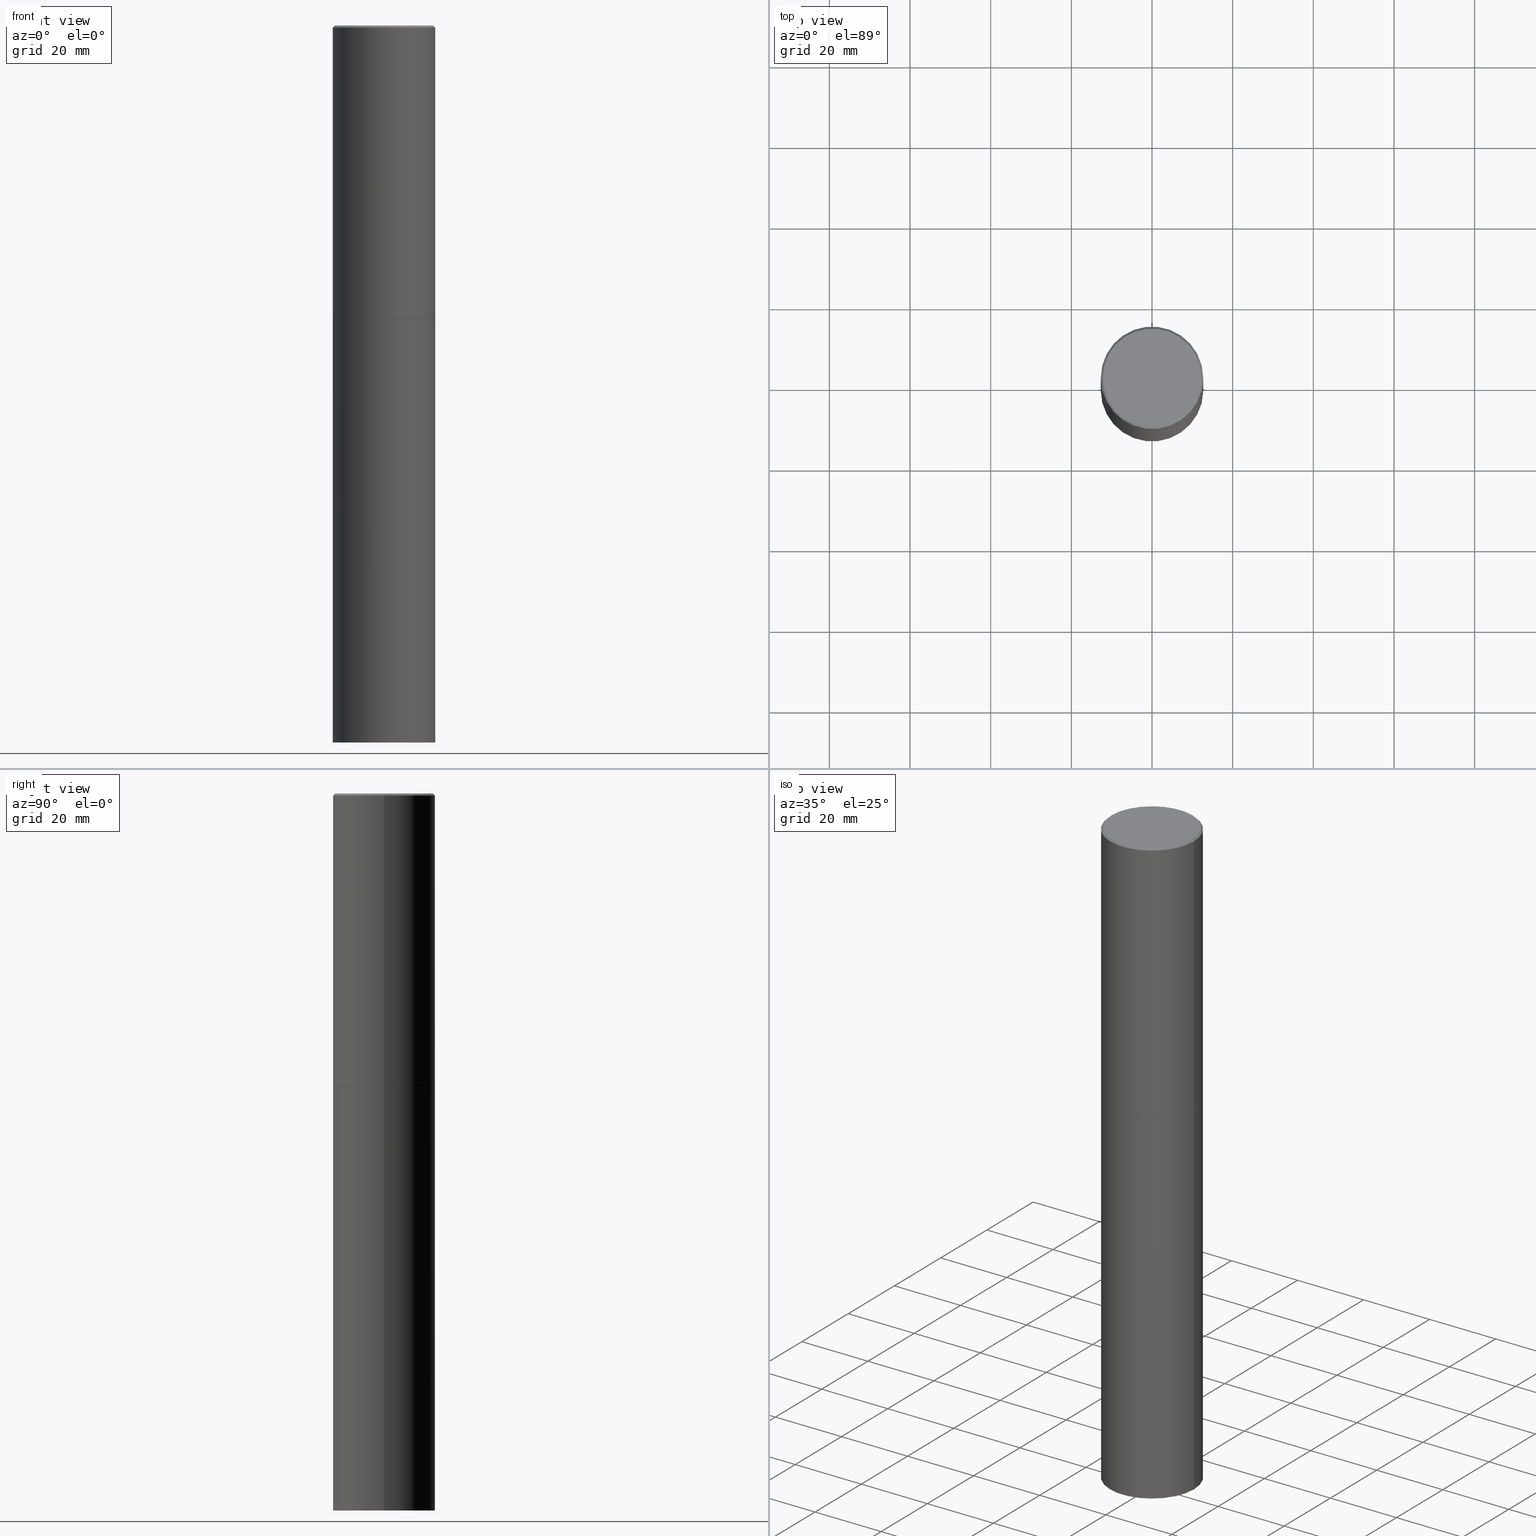
[diagram: canonical four-view strip — front | top / right | iso, engineering-drawing reading convention]
A machine part, canonical four-view strip (front | top / right | iso — engineering-drawing reading convention). The complete STEP part file that produces these views, byte-faithful:
ISO-10303-21;
HEADER;
FILE_DESCRIPTION (( 'STEP AP203' ),
    '1' );
FILE_NAME ('34835.STEP',
    '2024-02-27T17:54:03',
    ( '' ),
    ( '' ),
    'SwSTEP 2.0',
    'SolidWorks 2023',
    '' );
FILE_SCHEMA (( 'CONFIG_CONTROL_DESIGN' ));
ENDSEC;

DATA;
#1 = DATE_AND_TIME ( #231, #209 ) ;
#2 = CARTESIAN_POINT ( 'NONE',  ( -5.219257071676098903E-46, 7.451715851902235727E-32, 2.134256245050205639E-17 ) ) ;
#3 = PERSON_AND_ORGANIZATION_ROLE ( 'design_supplier' ) ;
#4 = ORIENTED_EDGE ( 'NONE', *, *, #196, .T. ) ;
#5 = FACE_OUTER_BOUND ( 'NONE', #96, .T. ) ;
#6 = DIRECTION ( 'NONE',  ( 1.000000000000000000, -6.982962677686266711E-15, 4.876176775795935793E-29 ) ) ;
#7 = CIRCLE ( 'NONE', #82, 0.4799999999999996492 ) ;
#8 = APPROVAL_PERSON_ORGANIZATION ( #114, #47, #253 ) ;
#9 = CARTESIAN_POINT ( 'NONE',  ( 0.5000000000000000000, -2.793185071074515204E-14, -7.000000000000000000 ) ) ;
#10 = ADVANCED_FACE ( 'NONE', ( #21 ), #170, .T. ) ;
#11 = CARTESIAN_POINT ( 'NONE',  ( 0.4999999999999997224, -3.500078625662627502E-15, -0.02000000000000009756 ) ) ;
#12 = CC_DESIGN_DATE_AND_TIME_ASSIGNMENT ( #89, #339, ( #365 ) ) ;
#13 = CARTESIAN_POINT ( 'NONE',  ( 3.491481338843304144E-15, 0.4999999999999755196, -7.000000000000001776 ) ) ;
#14 = PRODUCT_RELATED_PRODUCT_CATEGORY ( 'detail', '', ( #287 ) ) ;
#15 = ORIENTED_EDGE ( 'NONE', *, *, #156, .T. ) ;
#16 =( CONVERSION_BASED_UNIT ( 'INCH', #135 ) LENGTH_UNIT ( ) NAMED_UNIT ( #49 ) );
#17 = ORIENTED_EDGE ( 'NONE', *, *, #203, .F. ) ;
#18 = APPROVAL_PERSON_ORGANIZATION ( #176, #124, #199 ) ;
#19 = DIRECTION ( 'NONE',  ( -2.445468806185136597E-29, 3.491481338843145583E-15, 1.000000000000000000 ) ) ;
#20 = CONICAL_SURFACE ( 'NONE', #290, 0.4999999999999997224, 0.7853981633974468357 ) ;
#21 = FACE_OUTER_BOUND ( 'NONE', #300, .T. ) ;
#22 = CARTESIAN_POINT ( 'NONE',  ( 7.030722817782267716E-29, -1.003800884917404311E-14, -2.875000000000000000 ) ) ;
#23 = CARTESIAN_POINT ( 'NONE',  ( 0.000000000000000000, 0.000000000000000000, 0.000000000000000000 ) ) ;
#24 = ADVANCED_FACE ( 'NONE', ( #103 ), #154, .T. ) ;
#25 = CLOSED_SHELL ( 'NONE', ( #24, #34, #10, #128, #323, #348, #75, #181 ) ) ;
#26 = MANIFOLD_SOLID_BREP ( 'Body-Move/Copy2[2]', #25 ) ;
#27 = PERSON_AND_ORGANIZATION_ROLE ( 'classification_officer' ) ;
#28 = CARTESIAN_POINT ( 'NONE',  ( 7.030722817782267716E-29, -1.003800884917404311E-14, -2.875000000000000000 ) ) ;
#29 = PERSON_AND_ORGANIZATION_ROLE ( 'creator' ) ;
#30 = CIRCLE ( 'NONE', #236, 0.4989999999999999991 ) ;
#31 = ORIENTED_EDGE ( 'NONE', *, *, #42, .T. ) ;
#32 = CARTESIAN_POINT ( 'NONE',  ( 4.890937612370297681E-31, -6.982962677686324889E-17, -0.02000000000000009756 ) ) ;
#33 = CARTESIAN_POINT ( 'NONE',  ( -0.4799999999999996492, 3.386736898677836830E-15, 2.134256245047849534E-17 ) ) ;
#34 = ADVANCED_FACE ( 'NONE', ( #334 ), #53, .T. ) ;
#35 = DIRECTION ( 'NONE',  ( 1.000000000000000000, -6.982962677686266711E-15, 0.000000000000000000 ) ) ;
#36 = PRODUCT_DEFINITION_SHAPE ( 'NONE', 'NONE',  #296 ) ;
#37 = EDGE_LOOP ( 'NONE', ( #341, #159 ) ) ;
#38 = CARTESIAN_POINT ( 'NONE',  ( 0.4989999999999999991, -1.352250722533949203E-14, -2.875000000000000000 ) ) ;
#39 = CC_DESIGN_APPROVAL ( #47, ( #365 ) ) ;
#40 = CYLINDRICAL_SURFACE ( 'NONE', #211, 0.4999999999999998335 ) ;
#41 = EDGE_CURVE ( 'NONE', #271, #249, #336, .T. ) ;
#42 = EDGE_CURVE ( 'NONE', #249, #271, #148, .T. ) ;
#43 = EDGE_LOOP ( 'NONE', ( #185, #163, #284, #69 ) ) ;
#44 = LOCAL_TIME ( 12, 54, 3.000000000000000000, #104 ) ;
#45 = CARTESIAN_POINT ( 'NONE',  ( 0.000000000000000000, 0.000000000000000000, 0.000000000000000000 ) ) ;
#46 = AXIS2_PLACEMENT_3D ( 'NONE', #278, #111, #59 ) ;
#47 = APPROVAL ( #226, 'UNSPECIFIED' ) ;
#48 = DIRECTION ( 'NONE',  ( -2.445468806185136597E-29, 3.491481338843145583E-15, 1.000000000000000000 ) ) ;
#49 = DIMENSIONAL_EXPONENTS ( 1.000000000000000000, 0.000000000000000000, 0.000000000000000000, 0.000000000000000000, 0.000000000000000000, 0.000000000000000000, 0.000000000000000000 ) ;
#50 = CARTESIAN_POINT ( 'NONE',  ( -5.219257071676098903E-46, 7.451715851902235727E-32, 2.134256245050205639E-17 ) ) ;
#51 = AXIS2_PLACEMENT_3D ( 'NONE', #45, #169, #76 ) ;
#52 = DATE_TIME_ROLE ( 'creation_date' ) ;
#53 = CYLINDRICAL_SURFACE ( 'NONE', #314, 0.4999999999999998335 ) ;
#54 = EDGE_CURVE ( 'NONE', #92, #127, #245, .T. ) ;
#55 = VERTEX_POINT ( 'NONE', #147 ) ;
#56 = APPROVAL_PERSON_ORGANIZATION ( #331, #79, #194 ) ;
#57 = CARTESIAN_POINT ( 'NONE',  ( 0.5000000000000000000, -1.352949018801717646E-14, -2.875000000000000000 ) ) ;
#58 = CIRCLE ( 'NONE', #297, 0.4799999999999996492 ) ;
#59 = DIRECTION ( 'NONE',  ( 1.000000000000000000, -6.982962677686266711E-15, 0.000000000000000000 ) ) ;
#60 = EDGE_CURVE ( 'NONE', #288, #293, #30, .T. ) ;
#61 = DIRECTION ( 'NONE',  ( -2.445468806185136597E-29, 3.491481338843145583E-15, 1.000000000000000000 ) ) ;
#62 = ORIENTED_EDGE ( 'NONE', *, *, #359, .T. ) ;
#63 = CARTESIAN_POINT ( 'NONE',  ( 7.030722817782267716E-29, -1.003800884917404311E-14, -2.875000000000000000 ) ) ;
#64 = VECTOR ( 'NONE', #239, 39.37007874015748143 ) ;
#65 = CYLINDRICAL_SURFACE ( 'NONE', #206, 0.5000000000000000000 ) ;
#66 = ORIENTED_EDGE ( 'NONE', *, *, #237, .F. ) ;
#67 = LINE ( 'NONE', #157, #333 ) ;
#68 = EDGE_CURVE ( 'NONE', #174, #74, #58, .T. ) ;
#69 = ORIENTED_EDGE ( 'NONE', *, *, #133, .F. ) ;
#70 = AXIS2_PLACEMENT_3D ( 'NONE', #22, #19, #275 ) ;
#71 = DIRECTION ( 'NONE',  ( 1.000000000000000000, -6.982962677686269077E-15, 0.000000000000000000 ) ) ;
#72 = CIRCLE ( 'NONE', #228, 0.4999999999999997224 ) ;
#73 = PERSON_AND_ORGANIZATION_ROLE ( 'design_owner' ) ;
#74 = VERTEX_POINT ( 'NONE', #361 ) ;
#75 = ADVANCED_FACE ( 'NONE', ( #285 ), #80, .F. ) ;
#76 = DIRECTION ( 'NONE',  ( 1.000000000000000000, 0.000000000000000000, 0.000000000000000000 ) ) ;
#77 = ORIENTED_EDGE ( 'NONE', *, *, #344, .F. ) ;
#78 = FACE_OUTER_BOUND ( 'NONE', #178, .T. ) ;
#79 = APPROVAL ( #81, 'UNSPECIFIED' ) ;
#80 = PLANE ( 'NONE',  #123 ) ;
#81 = APPROVAL_STATUS ( 'not_yet_approved' ) ;
#82 = AXIS2_PLACEMENT_3D ( 'NONE', #50, #48, #200 ) ;
#83 = CARTESIAN_POINT ( 'NONE',  ( 1.711828164329595394E-28, -2.444036937190201868E-14, -7.000000000000000000 ) ) ;
#84 =( NAMED_UNIT ( * ) SI_UNIT ( $, .STERADIAN. ) SOLID_ANGLE_UNIT ( ) );
#85 = PRODUCT_DEFINITION_FORMATION_WITH_SPECIFIED_SOURCE ( 'ANY', '', #287, .NOT_KNOWN. ) ;
#86 = COORDINATED_UNIVERSAL_TIME_OFFSET ( 5, 0, .BEHIND. ) ;
#87 = VECTOR ( 'NONE', #167, 39.37007874015748143 ) ;
#88 = ADVANCED_FACE ( 'NONE', ( #5 ), #90, .T. ) ;
#89 = DATE_AND_TIME ( #233, #143 ) ;
#90 = CYLINDRICAL_SURFACE ( 'NONE', #276, 0.5000000000000000000 ) ;
#91 = PERSON_AND_ORGANIZATION ( #248, #165 ) ;
#92 = VERTEX_POINT ( 'NONE', #315 ) ;
#93 = DIRECTION ( 'NONE',  ( -2.445468806185136597E-29, 3.491481338843145583E-15, 1.000000000000000000 ) ) ;
#94 = DIRECTION ( 'NONE',  ( -2.445468806185136597E-29, 3.491481338843145583E-15, 1.000000000000000000 ) ) ;
#95 = AXIS2_PLACEMENT_3D ( 'NONE', #250, #234, #205 ) ;
#96 = EDGE_LOOP ( 'NONE', ( #17, #31, #105, #246 ) ) ;
#97 = LINE ( 'NONE', #11, #64 ) ;
#98 = CC_DESIGN_DATE_AND_TIME_ASSIGNMENT ( #260, #52, ( #296 ) ) ;
#99 = DIRECTION ( 'NONE',  ( -1.000000000000000000, 6.982962677686265922E-15, -4.876176775795935793E-29 ) ) ;
#100 = VECTOR ( 'NONE', #272, 39.37007874015748143 ) ;
#101 = DIRECTION ( 'NONE',  ( -0.7071067811865464625, 2.468850131082245622E-15, -0.7071067811865485719 ) ) ;
#102 = ORIENTED_EDGE ( 'NONE', *, *, #142, .F. ) ;
#103 = FACE_OUTER_BOUND ( 'NONE', #269, .T. ) ;
#104 = COORDINATED_UNIVERSAL_TIME_OFFSET ( 5, 0, .BEHIND. ) ;
#105 = ORIENTED_EDGE ( 'NONE', *, *, #344, .T. ) ;
#106 = EDGE_CURVE ( 'NONE', #293, #356, #261, .T. ) ;
#107 = LINE ( 'NONE', #324, #366 ) ;
#108 = FACE_OUTER_BOUND ( 'NONE', #43, .T. ) ;
#109 = DIRECTION ( 'NONE',  ( -1.000000000000000000, 6.982962677686266711E-15, 0.000000000000000000 ) ) ;
#110 = DIRECTION ( 'NONE',  ( -1.000000000000000000, 6.982962677686265922E-15, -4.876176775795935793E-29 ) ) ;
#111 = DIRECTION ( 'NONE',  ( -2.445468806185136597E-29, 3.491481338843145583E-15, 1.000000000000000000 ) ) ;
#112 =( NAMED_UNIT ( * ) PLANE_ANGLE_UNIT ( ) SI_UNIT ( $, .RADIAN. ) );
#113 = AXIS2_PLACEMENT_3D ( 'NONE', #13, #291, #155 ) ;
#114 = PERSON_AND_ORGANIZATION ( #248, #165 ) ;
#115 = EDGE_CURVE ( 'NONE', #74, #174, #7, .T. ) ;
#116 = PERSON_AND_ORGANIZATION ( #248, #165 ) ;
#117 = DIRECTION ( 'NONE',  ( -2.445468806185136597E-29, 3.491481338843145583E-15, 1.000000000000000000 ) ) ;
#118 = PERSON_AND_ORGANIZATION ( #248, #165 ) ;
#119 = DIRECTION ( 'NONE',  ( -2.445468806185136597E-29, 3.491481338843145583E-15, 1.000000000000000000 ) ) ;
#120 = FACE_OUTER_BOUND ( 'NONE', #204, .T. ) ;
#121 = ORIENTED_EDGE ( 'NONE', *, *, #54, .T. ) ;
#122 = DIRECTION ( 'NONE',  ( -2.445468806185136597E-29, 3.491481338843145583E-15, 1.000000000000000000 ) ) ;
#123 = AXIS2_PLACEMENT_3D ( 'NONE', #28, #340, #262 ) ;
#124 = APPROVAL ( #258, 'UNSPECIFIED' ) ;
#125 = AXIS2_PLACEMENT_3D ( 'NONE', #353, #140, #109 ) ;
#126 = CARTESIAN_POINT ( 'NONE',  ( -0.4989999999999999991, -6.487102143382921572E-15, -2.875000000000000000 ) ) ;
#127 = VERTEX_POINT ( 'NONE', #57 ) ;
#128 = ADVANCED_FACE ( 'NONE', ( #120 ), #20, .T. ) ;
#129 = ORIENTED_EDGE ( 'NONE', *, *, #263, .T. ) ;
#130 = CIRCLE ( 'NONE', #257, 0.5000000000000000000 ) ;
#131 = ORIENTED_EDGE ( 'NONE', *, *, #68, .T. ) ;
#132 = DATE_AND_TIME ( #304, #44 ) ;
#133 = EDGE_CURVE ( 'NONE', #55, #356, #193, .T. ) ;
#134 = ORIENTED_EDGE ( 'NONE', *, *, #133, .T. ) ;
#135 = LENGTH_MEASURE_WITH_UNIT ( LENGTH_MEASURE( 0.02539999999999999897 ), #218 );
#136 = ORIENTED_EDGE ( 'NONE', *, *, #41, .F. ) ;
#137 = AXIS2_PLACEMENT_3D ( 'NONE', #303, #117, #177 ) ;
#138 = DIRECTION ( 'NONE',  ( -2.445468806185136877E-29, 3.491481338843145188E-15, 1.000000000000000000 ) ) ;
#139 = MANIFOLD_SOLID_BREP ( 'Body-Move/Copy2[1]', #264 ) ;
#140 = DIRECTION ( 'NONE',  ( 2.445468806185136597E-29, -3.491481338843145583E-15, -1.000000000000000000 ) ) ;
#141 = CARTESIAN_POINT ( 'NONE',  ( -0.4999999999999998335, 3.552713678800499746E-15, -2.459467545127452330E-29 ) ) ;
#142 = EDGE_CURVE ( 'NONE', #160, #316, #241, .T. ) ;
#143 = LOCAL_TIME ( 12, 54, 3.000000000000000000, #224 ) ;
#144 = VECTOR ( 'NONE', #138, 39.37007874015748143 ) ;
#145 = CARTESIAN_POINT ( 'NONE',  ( 0.4989999999999999991, -1.352250722533949203E-14, -2.875000000000000000 ) ) ;
#146 = CC_DESIGN_PERSON_AND_ORGANIZATION_ASSIGNMENT ( #171, #3, ( #85 ) ) ;
#147 = CARTESIAN_POINT ( 'NONE',  ( -0.5000000000000000000, -1.499459818505530375E-15, -2.874000000000000110 ) ) ;
#148 = CIRCLE ( 'NONE', #182, 0.5000000000000000000 ) ;
#149 = CALENDAR_DATE ( 2024, 27, 2 ) ;
#150 = ORIENTED_EDGE ( 'NONE', *, *, #347, .F. ) ;
#151 = DIRECTION ( 'NONE',  ( 2.445468806185136597E-29, -3.491481338843145583E-15, -1.000000000000000000 ) ) ;
#152 = ORIENTED_EDGE ( 'NONE', *, *, #279, .T. ) ;
#153 = DIRECTION ( 'NONE',  ( 1.000000000000000000, -6.982962677686270655E-15, 0.000000000000000000 ) ) ;
#154 = CONICAL_SURFACE ( 'NONE', #197, 0.4989999999999999991, 0.7853981633975507526 ) ;
#155 = DIRECTION ( 'NONE',  ( -1.000000000000000000, 6.982962677686265922E-15, -4.876176775795935793E-29 ) ) ;
#156 = EDGE_CURVE ( 'NONE', #293, #288, #307, .T. ) ;
#157 = CARTESIAN_POINT ( 'NONE',  ( -0.4999999999999997224, 3.421651712066268085E-15, -0.02000000000000009756 ) ) ;
#158 = FACE_OUTER_BOUND ( 'NONE', #212, .T. ) ;
#159 = ORIENTED_EDGE ( 'NONE', *, *, #60, .F. ) ;
#160 = VERTEX_POINT ( 'NONE', #221 ) ;
#161 = DIRECTION ( 'NONE',  ( 1.000000000000000000, -6.982962677686266711E-15, 0.000000000000000000 ) ) ;
#162 = CC_DESIGN_PERSON_AND_ORGANIZATION_ASSIGNMENT ( #118, #27, ( #365 ) ) ;
#163 = ORIENTED_EDGE ( 'NONE', *, *, #60, .T. ) ;
#164 = PERSON_AND_ORGANIZATION ( #248, #165 ) ;
#165 = ORGANIZATION ( 'UNSPECIFIED', 'UNSPECIFIED', '' ) ;
#166 = EDGE_LOOP ( 'NONE', ( #326, #121 ) ) ;
#167 = DIRECTION ( 'NONE',  ( 0.7071067811866199593, -2.468850131083015945E-15, 0.7071067811864750752 ) ) ;
#168 = PLANE ( 'NONE',  #227 ) ;
#169 = DIRECTION ( 'NONE',  ( 0.000000000000000000, 0.000000000000000000, 1.000000000000000000 ) ) ;
#170 = CONICAL_SURFACE ( 'NONE', #125, 0.4999999999999997224, 0.7853981633974468357 ) ;
#171 = PERSON_AND_ORGANIZATION ( #248, #165 ) ;
#172 = COORDINATED_UNIVERSAL_TIME_OFFSET ( 5, 0, .BEHIND. ) ;
#173 = DIRECTION ( 'NONE',  ( -2.445468806185136597E-29, 3.491481338843145583E-15, 1.000000000000000000 ) ) ;
#174 = VERTEX_POINT ( 'NONE', #33 ) ;
#175 = CARTESIAN_POINT ( 'NONE',  ( 7.030722817782267716E-29, -1.003800884917404311E-14, -2.875000000000000000 ) ) ;
#176 = PERSON_AND_ORGANIZATION ( #248, #165 ) ;
#177 = DIRECTION ( 'NONE',  ( 1.000000000000000000, -6.982962677686269077E-15, 0.000000000000000000 ) ) ;
#178 = EDGE_LOOP ( 'NONE', ( #327, #134, #274, #318 ) ) ;
#179 = DIRECTION ( 'NONE',  ( 1.000000000000000000, -6.982962677686266711E-15, 4.876176775795935793E-29 ) ) ;
#180 = CC_DESIGN_SECURITY_CLASSIFICATION ( #365, ( #85 ) ) ;
#181 = ADVANCED_FACE ( 'NONE', ( #256 ), #230, .F. ) ;
#182 = AXIS2_PLACEMENT_3D ( 'NONE', #83, #122, #153 ) ;
#183 = CARTESIAN_POINT ( 'NONE',  ( -0.5000000000000000000, -1.368647543173752918E-14, -7.000000000000000000 ) ) ;
#184 = DIRECTION ( 'NONE',  ( -0.7071067811866199593, 7.493145998870616062E-15, 0.7071067811864750752 ) ) ;
#185 = ORIENTED_EDGE ( 'NONE', *, *, #279, .F. ) ;
#186 = LOCAL_TIME ( 12, 54, 3.000000000000000000, #86 ) ;
#187 = ORIENTED_EDGE ( 'NONE', *, *, #68, .F. ) ;
#188 = AXIS2_PLACEMENT_3D ( 'NONE', #281, #173, #195 ) ;
#189 = LINE ( 'NONE', #251, #100 ) ;
#190 = EDGE_LOOP ( 'NONE', ( #308, #244, #66, #77 ) ) ;
#191 = APPLICATION_PROTOCOL_DEFINITION ( 'international standard', 'config_control_design', 1994, #309 ) ;
#192 = DIRECTION ( 'NONE',  ( -1.000000000000000000, 6.982962677686266711E-15, 0.000000000000000000 ) ) ;
#193 = CIRCLE ( 'NONE', #95, 0.5000000000000000000 ) ;
#194 = APPROVAL_ROLE ( '' ) ;
#195 = DIRECTION ( 'NONE',  ( 1.000000000000000000, -6.982962677686270655E-15, 0.000000000000000000 ) ) ;
#196 = EDGE_CURVE ( 'NONE', #316, #160, #72, .T. ) ;
#197 = AXIS2_PLACEMENT_3D ( 'NONE', #213, #322, #71 ) ;
#198 = SHAPE_DEFINITION_REPRESENTATION ( #36, #294 ) ;
#199 = APPROVAL_ROLE ( '' ) ;
#200 = DIRECTION ( 'NONE',  ( 1.000000000000000000, -6.982962677686267499E-15, 4.876431871984417079E-29 ) ) ;
#201 = CALENDAR_DATE ( 2024, 27, 2 ) ;
#202 = DIRECTION ( 'NONE',  ( 1.000000000000000000, -6.982962677686267499E-15, 4.876176775795936353E-29 ) ) ;
#203 = EDGE_CURVE ( 'NONE', #249, #92, #208, .T. ) ;
#204 = EDGE_LOOP ( 'NONE', ( #280, #187, #129, #4 ) ) ;
#205 = DIRECTION ( 'NONE',  ( 1.000000000000000000, -6.982962677686266711E-15, 0.000000000000000000 ) ) ;
#206 = AXIS2_PLACEMENT_3D ( 'NONE', #349, #240, #179 ) ;
#207 = ORIENTED_EDGE ( 'NONE', *, *, #332, .F. ) ;
#208 = LINE ( 'NONE', #235, #325 ) ;
#209 = LOCAL_TIME ( 12, 54, 3.000000000000000000, #277 ) ;
#210 = CARTESIAN_POINT ( 'NONE',  ( -0.4999999999999997224, 3.421651712066268085E-15, -0.02000000000000009756 ) ) ;
#211 = AXIS2_PLACEMENT_3D ( 'NONE', #335, #357, #299 ) ;
#212 = EDGE_LOOP ( 'NONE', ( #136, #215 ) ) ;
#213 = CARTESIAN_POINT ( 'NONE',  ( 7.030722817782267716E-29, -1.003800884917404311E-14, -2.875000000000000000 ) ) ;
#214 = CARTESIAN_POINT ( 'NONE',  ( 7.028277348976082113E-29, -1.003451736783520168E-14, -2.874000000000000110 ) ) ;
#215 = ORIENTED_EDGE ( 'NONE', *, *, #42, .F. ) ;
#216 = ORIENTED_EDGE ( 'NONE', *, *, #347, .T. ) ;
#217 = EDGE_CURVE ( 'NONE', #74, #160, #97, .T. ) ;
#218 =( LENGTH_UNIT ( ) NAMED_UNIT ( * ) SI_UNIT ( $, .METRE. ) );
#219 = ORIENTED_EDGE ( 'NONE', *, *, #263, .F. ) ;
#220 = APPLICATION_PROTOCOL_DEFINITION ( 'international standard', 'config_control_design', 1994, #329 ) ;
#221 = CARTESIAN_POINT ( 'NONE',  ( 0.4999999999999997224, -3.500078625662627502E-15, -0.02000000000000009756 ) ) ;
#222 = AXIS2_PLACEMENT_3D ( 'NONE', #214, #223, #161 ) ;
#223 = DIRECTION ( 'NONE',  ( -2.445468806185136597E-29, 3.491481338843145583E-15, 1.000000000000000000 ) ) ;
#224 = COORDINATED_UNIVERSAL_TIME_OFFSET ( 5, 0, .BEHIND. ) ;
#225 = CC_DESIGN_PERSON_AND_ORGANIZATION_ASSIGNMENT ( #164, #73, ( #287 ) ) ;
#226 = APPROVAL_STATUS ( 'not_yet_approved' ) ;
#227 = AXIS2_PLACEMENT_3D ( 'NONE', #270, #301, #110 ) ;
#228 = AXIS2_PLACEMENT_3D ( 'NONE', #317, #265, #35 ) ;
#229 = APPROVAL_DATE_TIME ( #132, #79 ) ;
#230 = PLANE ( 'NONE',  #282 ) ;
#231 = CALENDAR_DATE ( 2024, 27, 2 ) ;
#232 = DIRECTION ( 'NONE',  ( 1.000000000000000000, -6.982962677686267499E-15, 4.876431871984417079E-29 ) ) ;
#233 = CALENDAR_DATE ( 2024, 27, 2 ) ;
#234 = DIRECTION ( 'NONE',  ( -2.445468806185136597E-29, 3.491481338843145583E-15, 1.000000000000000000 ) ) ;
#235 = CARTESIAN_POINT ( 'NONE',  ( -0.5000000000000000000, 3.552713678800500929E-15, -2.459467545127452891E-29 ) ) ;
#236 = AXIS2_PLACEMENT_3D ( 'NONE', #259, #305, #330 ) ;
#237 = EDGE_CURVE ( 'NONE', #127, #92, #130, .T. ) ;
#238 = PLANE ( 'NONE',  #113 ) ;
#239 = DIRECTION ( 'NONE',  ( 0.7071067811865464625, -7.319954787623252890E-15, -0.7071067811865485719 ) ) ;
#240 = DIRECTION ( 'NONE',  ( -2.445468806185136597E-29, 3.491481338843145583E-15, 1.000000000000000000 ) ) ;
#241 = CIRCLE ( 'NONE', #46, 0.4999999999999997224 ) ;
#242 = EDGE_LOOP ( 'NONE', ( #131, #295 ) ) ;
#243 = ORIENTED_EDGE ( 'NONE', *, *, #217, .T. ) ;
#244 = ORIENTED_EDGE ( 'NONE', *, *, #203, .T. ) ;
#245 = CIRCLE ( 'NONE', #319, 0.5000000000000000000 ) ;
#246 = ORIENTED_EDGE ( 'NONE', *, *, #54, .F. ) ;
#247 = DIRECTION ( 'NONE',  ( -2.445468806185136877E-29, 3.491481338843145188E-15, 1.000000000000000000 ) ) ;
#248 = PERSON ( 'UNSPECIFIED', 'UNSPECIFIED', 'UNSPECIFIED', ('UNSPECIFIED'), ('UNSPECIFIED'), ('UNSPECIFIED') ) ;
#249 = VERTEX_POINT ( 'NONE', #183 ) ;
#250 = CARTESIAN_POINT ( 'NONE',  ( 7.028277348976082113E-29, -1.003451736783520168E-14, -2.874000000000000110 ) ) ;
#251 = CARTESIAN_POINT ( 'NONE',  ( 0.5000000000000000000, -3.491481338843133355E-15, 2.438088387897967896E-29 ) ) ;
#252 = CC_DESIGN_APPROVAL ( #79, ( #296 ) ) ;
#253 = APPROVAL_ROLE ( '' ) ;
#254 = SECURITY_CLASSIFICATION_LEVEL ( 'unclassified' ) ;
#255 = UNCERTAINTY_MEASURE_WITH_UNIT (LENGTH_MEASURE( 1.000000000000000082E-05 ), #16, 'distance_accuracy_value', 'NONE');
#256 = FACE_OUTER_BOUND ( 'NONE', #242, .T. ) ;
#257 = AXIS2_PLACEMENT_3D ( 'NONE', #63, #61, #321 ) ;
#258 = APPROVAL_STATUS ( 'not_yet_approved' ) ;
#259 = CARTESIAN_POINT ( 'NONE',  ( 7.030722817782267716E-29, -1.003800884917404311E-14, -2.875000000000000000 ) ) ;
#260 = DATE_AND_TIME ( #149, #313 ) ;
#261 = LINE ( 'NONE', #145, #87 ) ;
#262 = DIRECTION ( 'NONE',  ( 1.000000000000000000, -6.982962677686265922E-15, 4.876176775795935793E-29 ) ) ;
#263 = EDGE_CURVE ( 'NONE', #174, #316, #67, .T. ) ;
#264 = CLOSED_SHELL ( 'NONE', ( #267, #298, #364, #88 ) ) ;
#265 = DIRECTION ( 'NONE',  ( -2.445468806185136597E-29, 3.491481338843145583E-15, 1.000000000000000000 ) ) ;
#266 = CC_DESIGN_APPROVAL ( #124, ( #85 ) ) ;
#267 = ADVANCED_FACE ( 'NONE', ( #292 ), #65, .T. ) ;
#268 = CARTESIAN_POINT ( 'NONE',  ( -0.4989999999999999991, -6.492400597731143185E-15, -2.875000000000000000 ) ) ;
#269 = EDGE_LOOP ( 'NONE', ( #15, #152, #150, #358 ) ) ;
#270 = CARTESIAN_POINT ( 'NONE',  ( 3.491481338843203169E-15, 0.4999999999999899525, -2.875000000000001332 ) ) ;
#271 = VERTEX_POINT ( 'NONE', #9 ) ;
#272 = DIRECTION ( 'NONE',  ( -2.445468806185136877E-29, 3.491481338843145188E-15, 1.000000000000000000 ) ) ;
#273 = VECTOR ( 'NONE', #184, 39.37007874015748143 ) ;
#274 = ORIENTED_EDGE ( 'NONE', *, *, #332, .T. ) ;
#275 = DIRECTION ( 'NONE',  ( 1.000000000000000000, -6.982962677686269077E-15, 0.000000000000000000 ) ) ;
#276 = AXIS2_PLACEMENT_3D ( 'NONE', #286, #93, #6 ) ;
#277 = COORDINATED_UNIVERSAL_TIME_OFFSET ( 5, 0, .BEHIND. ) ;
#278 = CARTESIAN_POINT ( 'NONE',  ( 4.890937612370297681E-31, -6.982962677686324889E-17, -0.02000000000000009756 ) ) ;
#279 = EDGE_CURVE ( 'NONE', #288, #55, #289, .T. ) ;
#280 = ORIENTED_EDGE ( 'NONE', *, *, #217, .F. ) ;
#281 = CARTESIAN_POINT ( 'NONE',  ( 1.711828164329595394E-28, -2.444036937190201868E-14, -7.000000000000000000 ) ) ;
#282 = AXIS2_PLACEMENT_3D ( 'NONE', #338, #352, #99 ) ;
#283 = APPROVAL_DATE_TIME ( #1, #124 ) ;
#284 = ORIENTED_EDGE ( 'NONE', *, *, #106, .T. ) ;
#285 = FACE_OUTER_BOUND ( 'NONE', #37, .T. ) ;
#286 = CARTESIAN_POINT ( 'NONE',  ( 0.000000000000000000, 0.000000000000000000, 0.000000000000000000 ) ) ;
#287 = PRODUCT ( '34835', '34835', '', ( #360 ) ) ;
#288 = VERTEX_POINT ( 'NONE', #126 ) ;
#289 = LINE ( 'NONE', #268, #273 ) ;
#290 = AXIS2_PLACEMENT_3D ( 'NONE', #32, #151, #192 ) ;
#291 = DIRECTION ( 'NONE',  ( 2.438088387897960049E-29, -3.491481338843145188E-15, -1.000000000000000000 ) ) ;
#292 = FACE_OUTER_BOUND ( 'NONE', #190, .T. ) ;
#293 = VERTEX_POINT ( 'NONE', #38 ) ;
#294 = ADVANCED_BREP_SHAPE_REPRESENTATION ( '34835', ( #139, #26, #51 ), #343 ) ;
#295 = ORIENTED_EDGE ( 'NONE', *, *, #115, .T. ) ;
#296 = PRODUCT_DEFINITION ( 'UNKNOWN', '', #85, #337 ) ;
#297 = AXIS2_PLACEMENT_3D ( 'NONE', #2, #94, #232 ) ;
#298 = ADVANCED_FACE ( 'NONE', ( #158 ), #238, .T. ) ;
#299 = DIRECTION ( 'NONE',  ( 1.000000000000000000, -6.982962677686267499E-15, 4.876176775795936353E-29 ) ) ;
#300 = EDGE_LOOP ( 'NONE', ( #320, #243, #351, #219 ) ) ;
#301 = DIRECTION ( 'NONE',  ( 2.438088387897960049E-29, -3.491481338843145188E-15, -1.000000000000000000 ) ) ;
#302 = CIRCLE ( 'NONE', #222, 0.5000000000000000000 ) ;
#303 = CARTESIAN_POINT ( 'NONE',  ( 7.030722817782267716E-29, -1.003800884917404311E-14, -2.875000000000000000 ) ) ;
#304 = CALENDAR_DATE ( 2024, 27, 2 ) ;
#305 = DIRECTION ( 'NONE',  ( -2.445468806185136597E-29, 3.491481338843145583E-15, 1.000000000000000000 ) ) ;
#306 = PERSON_AND_ORGANIZATION_ROLE ( 'creator' ) ;
#307 = CIRCLE ( 'NONE', #137, 0.4989999999999999991 ) ;
#308 = ORIENTED_EDGE ( 'NONE', *, *, #41, .T. ) ;
#309 = APPLICATION_CONTEXT ( 'configuration controlled 3d designs of mechanical parts and assemblies' ) ;
#310 = DATE_AND_TIME ( #201, #186 ) ;
#311 = EDGE_LOOP ( 'NONE', ( #216, #62, #102, #207 ) ) ;
#312 = DIRECTION ( 'NONE',  ( -2.445468806185136597E-29, 3.491481338843145583E-15, 1.000000000000000000 ) ) ;
#313 = LOCAL_TIME ( 12, 54, 3.000000000000000000, #172 ) ;
#314 = AXIS2_PLACEMENT_3D ( 'NONE', #23, #312, #202 ) ;
#315 = CARTESIAN_POINT ( 'NONE',  ( -0.5000000000000000000, -1.368647543173752918E-14, -2.875000000000000000 ) ) ;
#316 = VERTEX_POINT ( 'NONE', #210 ) ;
#317 = CARTESIAN_POINT ( 'NONE',  ( 4.890937612370297681E-31, -6.982962677686324889E-17, -0.02000000000000009756 ) ) ;
#318 = ORIENTED_EDGE ( 'NONE', *, *, #196, .F. ) ;
#319 = AXIS2_PLACEMENT_3D ( 'NONE', #175, #119, #342 ) ;
#320 = ORIENTED_EDGE ( 'NONE', *, *, #115, .F. ) ;
#321 = DIRECTION ( 'NONE',  ( 1.000000000000000000, -6.982962677686266711E-15, 0.000000000000000000 ) ) ;
#322 = DIRECTION ( 'NONE',  ( -2.445468806185136597E-29, 3.491481338843145583E-15, 1.000000000000000000 ) ) ;
#323 = ADVANCED_FACE ( 'NONE', ( #78 ), #40, .T. ) ;
#324 = CARTESIAN_POINT ( 'NONE',  ( 0.4999999999999998335, -3.491481338843132566E-15, 2.438088387897967336E-29 ) ) ;
#325 = VECTOR ( 'NONE', #346, 39.37007874015748143 ) ;
#326 = ORIENTED_EDGE ( 'NONE', *, *, #237, .T. ) ;
#327 = ORIENTED_EDGE ( 'NONE', *, *, #359, .F. ) ;
#328 = LINE ( 'NONE', #141, #144 ) ;
#329 = APPLICATION_CONTEXT ( 'configuration controlled 3d designs of mechanical parts and assemblies' ) ;
#330 = DIRECTION ( 'NONE',  ( 1.000000000000000000, -6.982962677686269077E-15, 0.000000000000000000 ) ) ;
#331 = PERSON_AND_ORGANIZATION ( #248, #165 ) ;
#332 = EDGE_CURVE ( 'NONE', #356, #160, #107, .T. ) ;
#333 = VECTOR ( 'NONE', #101, 39.37007874015748143 ) ;
#334 = FACE_OUTER_BOUND ( 'NONE', #311, .T. ) ;
#335 = CARTESIAN_POINT ( 'NONE',  ( 0.000000000000000000, 0.000000000000000000, 0.000000000000000000 ) ) ;
#336 = CIRCLE ( 'NONE', #188, 0.5000000000000000000 ) ;
#337 = DESIGN_CONTEXT ( 'detailed design', #329, 'design' ) ;
#338 = CARTESIAN_POINT ( 'NONE',  ( 3.351822085289405181E-15, 0.4799999999999996492, -1.665239761419457638E-15 ) ) ;
#339 = DATE_TIME_ROLE ( 'classification_date' ) ;
#340 = DIRECTION ( 'NONE',  ( -2.438088387897960049E-29, 3.491481338843145188E-15, 1.000000000000000000 ) ) ;
#341 = ORIENTED_EDGE ( 'NONE', *, *, #156, .F. ) ;
#342 = DIRECTION ( 'NONE',  ( 1.000000000000000000, -6.982962677686266711E-15, 0.000000000000000000 ) ) ;
#343 =( GEOMETRIC_REPRESENTATION_CONTEXT ( 3 ) GLOBAL_UNCERTAINTY_ASSIGNED_CONTEXT ( ( #255 ) ) GLOBAL_UNIT_ASSIGNED_CONTEXT ( ( #16, #112, #84 ) ) REPRESENTATION_CONTEXT ( 'NONE', 'WORKASPACE' ) );
#344 = EDGE_CURVE ( 'NONE', #271, #127, #189, .T. ) ;
#345 = CONICAL_SURFACE ( 'NONE', #70, 0.4989999999999999991, 0.7853981633975507526 ) ;
#346 = DIRECTION ( 'NONE',  ( -2.445468806185136877E-29, 3.491481338843145188E-15, 1.000000000000000000 ) ) ;
#347 = EDGE_CURVE ( 'NONE', #356, #55, #302, .T. ) ;
#348 = ADVANCED_FACE ( 'NONE', ( #108 ), #345, .T. ) ;
#349 = CARTESIAN_POINT ( 'NONE',  ( 0.000000000000000000, 0.000000000000000000, 0.000000000000000000 ) ) ;
#350 = CC_DESIGN_PERSON_AND_ORGANIZATION_ASSIGNMENT ( #91, #29, ( #85 ) ) ;
#351 = ORIENTED_EDGE ( 'NONE', *, *, #142, .T. ) ;
#352 = DIRECTION ( 'NONE',  ( 2.438088387897960049E-29, -3.491481338843145188E-15, -1.000000000000000000 ) ) ;
#353 = CARTESIAN_POINT ( 'NONE',  ( 4.890937612370297681E-31, -6.982962677686324889E-17, -0.02000000000000009756 ) ) ;
#354 = CARTESIAN_POINT ( 'NONE',  ( 0.5000000000000000000, -1.352599870667833503E-14, -2.874000000000000110 ) ) ;
#355 = FACE_OUTER_BOUND ( 'NONE', #166, .T. ) ;
#356 = VERTEX_POINT ( 'NONE', #354 ) ;
#357 = DIRECTION ( 'NONE',  ( -2.445468806185136597E-29, 3.491481338843145583E-15, 1.000000000000000000 ) ) ;
#358 = ORIENTED_EDGE ( 'NONE', *, *, #106, .F. ) ;
#359 = EDGE_CURVE ( 'NONE', #55, #316, #328, .T. ) ;
#360 = MECHANICAL_CONTEXT ( 'NONE', #309, 'mechanical' ) ;
#361 = CARTESIAN_POINT ( 'NONE',  ( 0.4799999999999996492, -3.396558832296480127E-15, 2.134256245052565135E-17 ) ) ;
#362 = CC_DESIGN_PERSON_AND_ORGANIZATION_ASSIGNMENT ( #116, #306, ( #296 ) ) ;
#363 = APPROVAL_DATE_TIME ( #310, #47 ) ;
#364 = ADVANCED_FACE ( 'NONE', ( #355 ), #168, .F. ) ;
#365 = SECURITY_CLASSIFICATION ( '', '', #254 ) ;
#366 = VECTOR ( 'NONE', #247, 39.37007874015748143 ) ;
ENDSEC;
END-ISO-10303-21;
